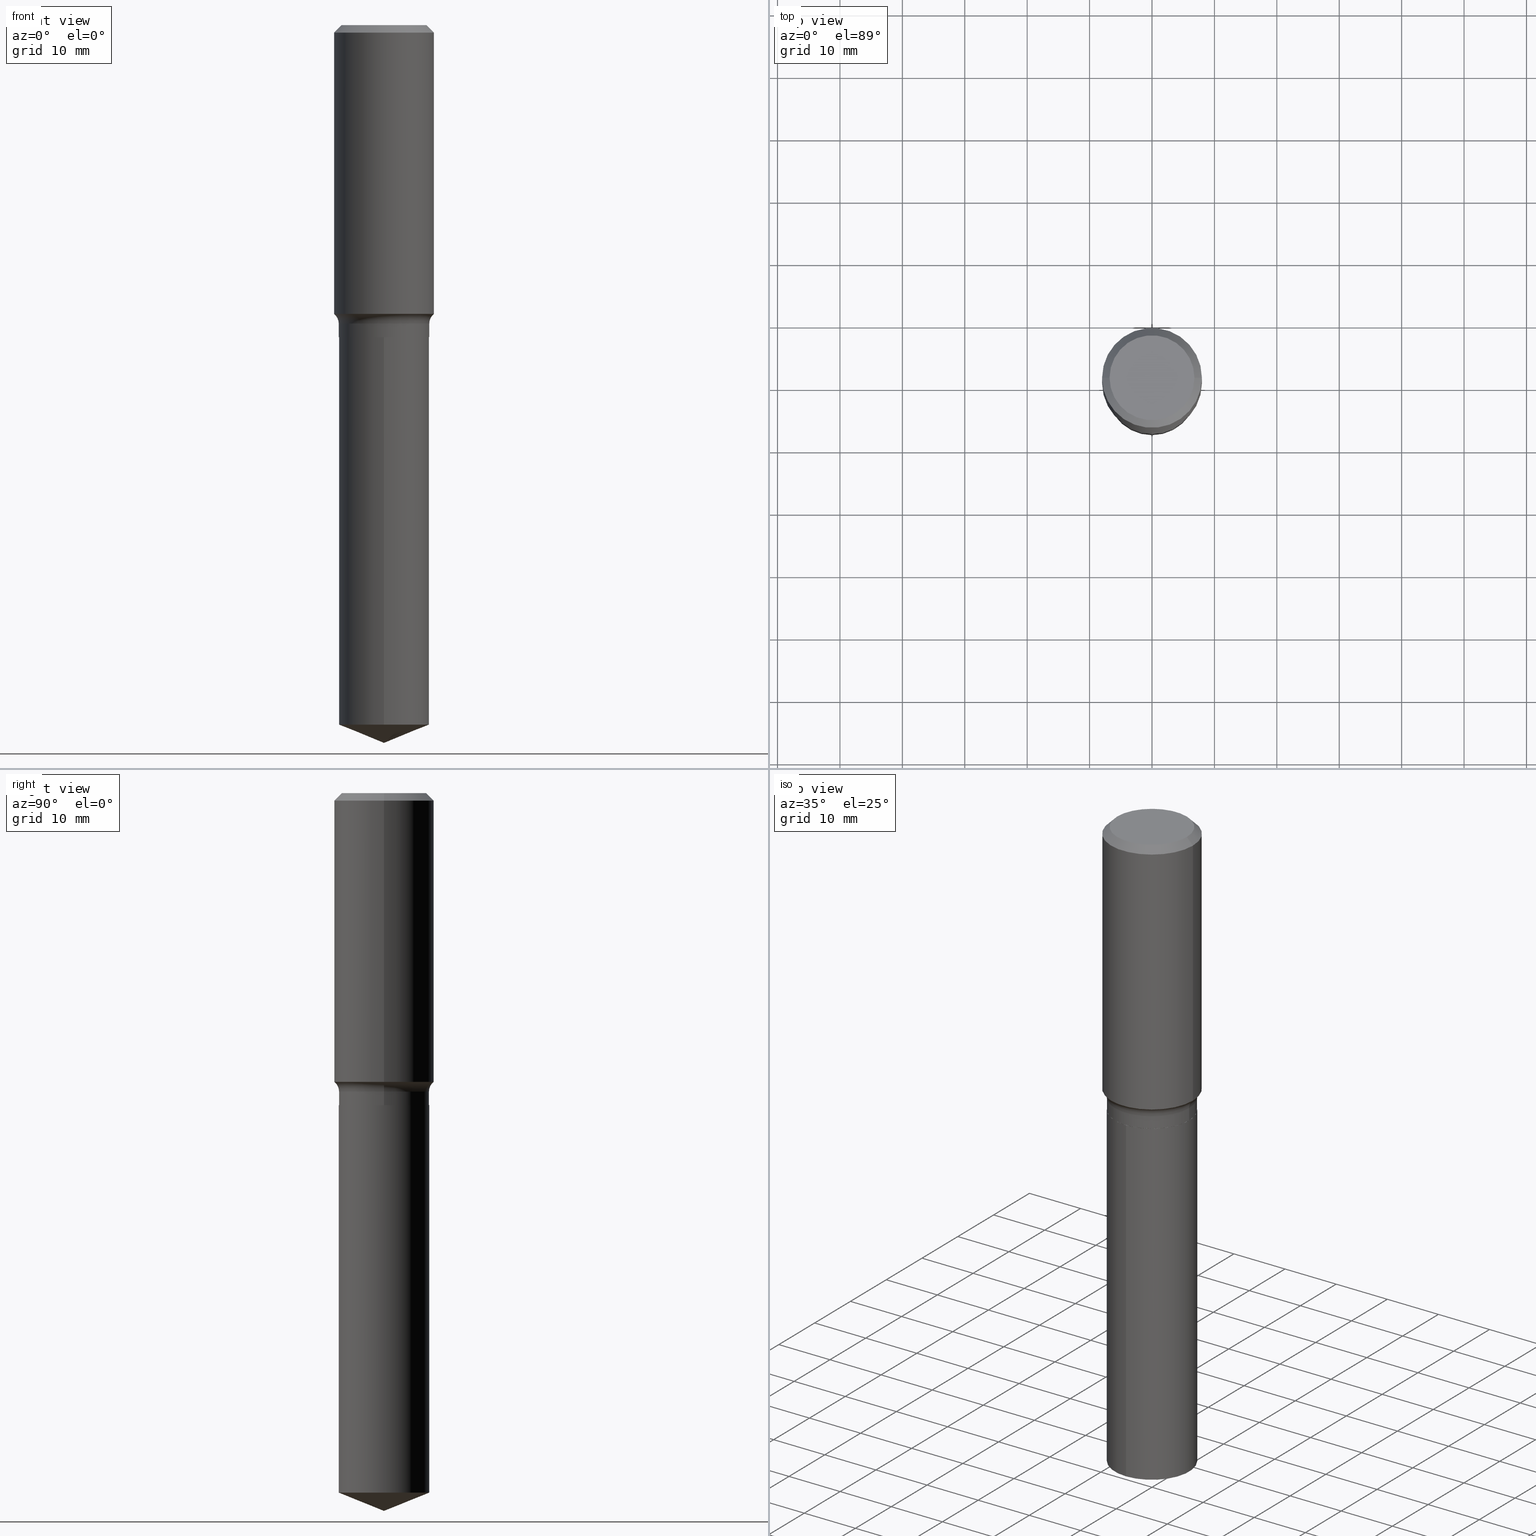
[diagram: canonical four-view strip — front | top / right | iso, engineering-drawing reading convention]
A machine part, canonical four-view strip (front | top / right | iso — engineering-drawing reading convention). The complete STEP part file that produces these views, byte-faithful:
ISO-10303-21;
HEADER;
FILE_DESCRIPTION (( 'STEP AP203' ),
    '1' );
FILE_NAME ('69217.STEP',
    '2024-04-19T17:24:49',
    ( '' ),
    ( '' ),
    'SwSTEP 2.0',
    'SolidWorks 2023',
    '' );
FILE_SCHEMA (( 'CONFIG_CONTROL_DESIGN' ));
ENDSEC;

DATA;
#1 = LINE ( 'NONE', #32, #479 ) ;
#2 = EDGE_CURVE ( 'NONE', #256, #327, #13, .T. ) ;
#3 = CARTESIAN_POINT ( 'NONE',  ( 4.455184291514019437E-29, -6.360822422099911684E-15, -1.821811948795201808 ) ) ;
#4 = APPROVAL ( #245, 'UNSPECIFIED' ) ;
#5 = FACE_OUTER_BOUND ( 'NONE', #366, .T. ) ;
#6 = CARTESIAN_POINT ( 'NONE',  ( 1.155300600762019572E-30, -1.649463071502982046E-16, -0.04724250000000026345 ) ) ;
#7 = PERSON_AND_ORGANIZATION ( #217, #439 ) ;
#8 = EDGE_LOOP ( 'NONE', ( #391, #482, #38, #113 ) ) ;
#9 = PERSON_AND_ORGANIZATION_ROLE ( 'classification_officer' ) ;
#10 = AXIS2_PLACEMENT_3D ( 'NONE', #37, #338, #409 ) ;
#11 = AXIS2_PLACEMENT_3D ( 'NONE', #176, #473, #316 ) ;
#12 = EDGE_CURVE ( 'NONE', #329, #239, #117, .T. ) ;
#13 = LINE ( 'NONE', #172, #130 ) ;
#14 = ORIENTED_EDGE ( 'NONE', *, *, #376, .T. ) ;
#15 = CALENDAR_DATE ( 2024, 19, 4 ) ;
#16 = AXIS2_PLACEMENT_3D ( 'NONE', #158, #259, #226 ) ;
#17 = CARTESIAN_POINT ( 'NONE',  ( 0.3149500000000000632, -2.199284095337290265E-15, 1.535751875536930410E-29 ) ) ;
#18 = VECTOR ( 'NONE', #188, 39.37007874015748854 ) ;
#19 = FACE_OUTER_BOUND ( 'NONE', #8, .T. ) ;
#20 = CARTESIAN_POINT ( 'NONE',  ( 4.813905344975440153E-29, -6.872981015512730130E-15, -1.968499999999999472 ) ) ;
#21 = CONICAL_SURFACE ( 'NONE', #381, 97.44436430772837809, 1.186823891356144856 ) ;
#22 = ADVANCED_FACE ( 'NONE', ( #40 ), #274, .T. ) ;
#23 = AXIS2_PLACEMENT_3D ( 'NONE', #249, #398, #64 ) ;
#24 = CC_DESIGN_SECURITY_CLASSIFICATION ( #205, ( #335 ) ) ;
#25 = ORIENTED_EDGE ( 'NONE', *, *, #100, .T. ) ;
#26 = DIRECTION ( 'NONE',  ( -2.445468806185136597E-29, 3.491481338843145583E-15, 1.000000000000000000 ) ) ;
#27 = MANIFOLD_SOLID_BREP ( 'Body-Move/Copy2[1]', #129 ) ;
#28 = EDGE_LOOP ( 'NONE', ( #418, #44, #368 ) ) ;
#29 = CARTESIAN_POINT ( 'NONE',  ( -1.001697619218022568E-46, 1.430158722866391086E-32, 4.096137381448112218E-18 ) ) ;
#30 = ORIENTED_EDGE ( 'NONE', *, *, #155, .F. ) ;
#31 = EDGE_CURVE ( 'NONE', #136, #207, #263, .T. ) ;
#32 = CARTESIAN_POINT ( 'NONE',  ( -1.993286696345496046E-15, -0.2854500000000068094, -1.968499999999998362 ) ) ;
#33 = AXIS2_PLACEMENT_3D ( 'NONE', #91, #85, #342 ) ;
#34 = AXIS2_PLACEMENT_3D ( 'NONE', #378, #41, #367 ) ;
#35 = ORIENTED_EDGE ( 'NONE', *, *, #210, .T. ) ;
#36 = CARTESIAN_POINT ( 'NONE',  ( 0.2854499999999999815, -1.993286696345544561E-15, 1.391904660650949682E-29 ) ) ;
#37 = CARTESIAN_POINT ( 'NONE',  ( 4.455184291514019437E-29, -6.360822422099911684E-15, -1.821811948795201808 ) ) ;
#38 = ORIENTED_EDGE ( 'NONE', *, *, #71, .F. ) ;
#39 = DIRECTION ( 'NONE',  ( -2.445526132303664263E-29, 3.491399244578613413E-15, 1.000000000000000000 ) ) ;
#40 = FACE_OUTER_BOUND ( 'NONE', #82, .T. ) ;
#41 = DIRECTION ( 'NONE',  ( 2.438088387897960049E-29, -3.491481338843145188E-15, -1.000000000000000000 ) ) ;
#42 = CC_DESIGN_PERSON_AND_ORGANIZATION_ASSIGNMENT ( #238, #357, ( #335 ) ) ;
#43 = CIRCLE ( 'NONE', #23, 0.2854499999999999815 ) ;
#44 = ORIENTED_EDGE ( 'NONE', *, *, #2, .T. ) ;
#45 = CIRCLE ( 'NONE', #177, 0.2677074999999999871 ) ;
#46 = PERSON_AND_ORGANIZATION_ROLE ( 'design_owner' ) ;
#47 = DIRECTION ( 'NONE',  ( 1.000000000000000000, -6.982962677686265922E-15, 0.000000000000000000 ) ) ;
#48 = CALENDAR_DATE ( 2024, 19, 4 ) ;
#49 = PRODUCT ( '69217', '69217', '', ( #126 ) ) ;
#50 = DIRECTION ( 'NONE',  ( -2.445526132303664543E-29, 3.491399244578613413E-15, 1.000000000000000000 ) ) ;
#51 = ADVANCED_FACE ( 'NONE', ( #377 ), #68, .T. ) ;
#52 = PERSON_AND_ORGANIZATION ( #217, #439 ) ;
#53 = APPLICATION_CONTEXT ( 'configuration controlled 3d designs of mechanical parts and assemblies' ) ;
#54 = PLANE ( 'NONE',  #33 ) ;
#55 = CIRCLE ( 'NONE', #197, 0.2854499999999999815 ) ;
#56 = AXIS2_PLACEMENT_3D ( 'NONE', #120, #149, #255 ) ;
#57 = VERTEX_POINT ( 'NONE', #425 ) ;
#58 = APPROVAL_STATUS ( 'not_yet_approved' ) ;
#59 = CARTESIAN_POINT ( 'NONE',  ( 4.812682610572347912E-29, -6.871235274843308626E-15, -1.967999999999999527 ) ) ;
#60 = DIRECTION ( 'NONE',  ( -2.445468806185136597E-29, 3.491481338843145583E-15, 1.000000000000000000 ) ) ;
#61 = CIRCLE ( 'NONE', #270, 0.3149500000000001743 ) ;
#62 = DIRECTION ( 'NONE',  ( 1.000000000000000000, -6.982962677686265922E-15, 0.000000000000000000 ) ) ;
#63 = LOCAL_TIME ( 13, 24, 49.00000000000000000, #272 ) ;
#64 = DIRECTION ( 'NONE',  ( -6.982962677686265133E-15, -1.000000000000000000, 3.828128209723963046E-15 ) ) ;
#65 = ADVANCED_FACE ( 'NONE', ( #195 ), #54, .F. ) ;
#66 = ORIENTED_EDGE ( 'NONE', *, *, #487, .T. ) ;
#67 = CARTESIAN_POINT ( 'NONE',  ( 0.2849499999999999811, -8.862776230519431684E-15, -1.968499999999999472 ) ) ;
#68 = CONICAL_SURFACE ( 'NONE', #243, 0.3149500000000000077, 0.7853981633974456145 ) ;
#69 = ORIENTED_EDGE ( 'NONE', *, *, #84, .T. ) ;
#70 = DIRECTION ( 'NONE',  ( -6.982962677686266711E-15, -1.000000000000000000, 3.491481338843145583E-15 ) ) ;
#71 = EDGE_CURVE ( 'NONE', #88, #57, #55, .T. ) ;
#72 = VERTEX_POINT ( 'NONE', #492 ) ;
#73 = CARTESIAN_POINT ( 'NONE',  ( 0.3149500000000001743, -8.560106517437202343E-15, -1.821811948795201808 ) ) ;
#74 = FACE_OUTER_BOUND ( 'NONE', #383, .T. ) ;
#75 = EDGE_LOOP ( 'NONE', ( #193, #66, #405, #370 ) ) ;
#76 = CARTESIAN_POINT ( 'NONE',  ( -0.2854500000000000370, -4.694428504648327695E-15, -1.882899999999999796 ) ) ;
#77 = AXIS2_PLACEMENT_3D ( 'NONE', #59, #60, #346 ) ;
#78 = APPLICATION_CONTEXT ( 'configuration controlled 3d designs of mechanical parts and assemblies' ) ;
#79 = CIRCLE ( 'NONE', #415, 0.3149500000000000077 ) ;
#80 = EDGE_LOOP ( 'NONE', ( #128, #14, #35, #490 ) ) ;
#81 = DIRECTION ( 'NONE',  ( 7.105427357601001859E-15, 1.000000000000000000, -3.491481338843145583E-15 ) ) ;
#82 = EDGE_LOOP ( 'NONE', ( #231, #410, #364, #148 ) ) ;
#83 = DIRECTION ( 'NONE',  ( -2.445526132303664543E-29, 3.491399244578613413E-15, 1.000000000000000000 ) ) ;
#84 = EDGE_CURVE ( 'NONE', #451, #136, #61, .T. ) ;
#85 = DIRECTION ( 'NONE',  ( 2.445526132303664263E-29, -3.491399244578613413E-15, -1.000000000000000000 ) ) ;
#86 = DATE_AND_TIME ( #15, #98 ) ;
#87 = AXIS2_PLACEMENT_3D ( 'NONE', #124, #121, #420 ) ;
#88 = VERTEX_POINT ( 'NONE', #261 ) ;
#89 = VECTOR ( 'NONE', #375, 39.37007874015748143 ) ;
#90 = PERSON_AND_ORGANIZATION ( #217, #439 ) ;
#91 = CARTESIAN_POINT ( 'NONE',  ( 4.813905344975440153E-29, -6.872981015512730130E-15, -1.968499999999999472 ) ) ;
#92 = LENGTH_MEASURE_WITH_UNIT ( LENGTH_MEASURE( 0.02539999999999999897 ), #114 );
#93 = DIRECTION ( 'NONE',  ( -1.000000000000000000, 6.982962677686266711E-15, 0.000000000000000000 ) ) ;
#94 = COORDINATED_UNIVERSAL_TIME_OFFSET ( 5, 0, .BEHIND. ) ;
#95 = ORIENTED_EDGE ( 'NONE', *, *, #31, .F. ) ;
#96 = CONICAL_SURFACE ( 'NONE', #159, 97.44436430772837809, 1.186823891356144856 ) ;
#97 = SECURITY_CLASSIFICATION_LEVEL ( 'unclassified' ) ;
#98 = LOCAL_TIME ( 13, 24, 49.00000000000000000, #170 ) ;
#99 = DIRECTION ( 'NONE',  ( -2.445468806185136597E-29, 3.491481338843145583E-15, 1.000000000000000000 ) ) ;
#100 = EDGE_CURVE ( 'NONE', #57, #441, #160, .T. ) ;
#101 = CC_DESIGN_PERSON_AND_ORGANIZATION_ASSIGNMENT ( #52, #9, ( #205 ) ) ;
#102 = DIRECTION ( 'NONE',  ( 1.000000000000000000, -6.982962677686266711E-15, 4.883557194083112901E-29 ) ) ;
#103 = CIRCLE ( 'NONE', #10, 0.3149500000000001743 ) ;
#104 = CARTESIAN_POINT ( 'NONE',  ( -0.2849499999999999811, -4.845640262790213978E-15, -1.968499999999999472 ) ) ;
#105 = VECTOR ( 'NONE', #340, 39.37007874015748854 ) ;
#106 = ADVANCED_FACE ( 'NONE', ( #460 ), #21, .T. ) ;
#107 = CARTESIAN_POINT ( 'NONE',  ( -1.993286696345436093E-15, -0.2854500000000153026, -4.412270713835352964 ) ) ;
#108 = VERTEX_POINT ( 'NONE', #306 ) ;
#109 = DIRECTION ( 'NONE',  ( -6.982962677686265922E-15, -1.000000000000000000, 3.498761904101829135E-15 ) ) ;
#110 = AXIS2_PLACEMENT_3D ( 'NONE', #433, #99, #246 ) ;
#111 = ORIENTED_EDGE ( 'NONE', *, *, #100, .F. ) ;
#112 = CARTESIAN_POINT ( 'NONE',  ( 1.107213842368942648E-28, -1.580798242487359343E-14, -4.527599999999999625 ) ) ;
#113 = ORIENTED_EDGE ( 'NONE', *, *, #382, .F. ) ;
#114 =( LENGTH_UNIT ( ) NAMED_UNIT ( * ) SI_UNIT ( $, .METRE. ) );
#115 = EDGE_LOOP ( 'NONE', ( #467, #339, #311, #483 ) ) ;
#116 = CARTESIAN_POINT ( 'NONE',  ( 1.155300600762019572E-30, -1.649463071502982046E-16, -0.04724250000000026345 ) ) ;
#117 = CIRCLE ( 'NONE', #278, 0.2849499999999999811 ) ;
#118 = EDGE_LOOP ( 'NONE', ( #69, #242, #145, #254 ) ) ;
#119 = EDGE_CURVE ( 'NONE', #356, #207, #423, .T. ) ;
#120 = CARTESIAN_POINT ( 'NONE',  ( 0.000000000000000000, 0.000000000000000000, 0.000000000000000000 ) ) ;
#121 = DIRECTION ( 'NONE',  ( -2.445526132303664543E-29, 3.491399244578613413E-15, 1.000000000000000000 ) ) ;
#122 = ORIENTED_EDGE ( 'NONE', *, *, #84, .F. ) ;
#123 = LINE ( 'NONE', #154, #89 ) ;
#124 = CARTESIAN_POINT ( 'NONE',  ( 4.813905344975440153E-29, -6.872981015512730130E-15, -1.968499999999999472 ) ) ;
#125 = DIRECTION ( 'NONE',  ( 2.445468806185136597E-29, -3.491481338843145583E-15, -1.000000000000000000 ) ) ;
#126 = MECHANICAL_CONTEXT ( 'NONE', #53, 'mechanical' ) ;
#127 = PRODUCT_RELATED_PRODUCT_CATEGORY ( 'detail', '', ( #49 ) ) ;
#128 = ORIENTED_EDGE ( 'NONE', *, *, #184, .F. ) ;
#129 = CLOSED_SHELL ( 'NONE', ( #397, #292, #106, #22, #65 ) ) ;
#130 = VECTOR ( 'NONE', #388, 39.37007874015748143 ) ;
#131 = ORIENTED_EDGE ( 'NONE', *, *, #163, .T. ) ;
#132 = LOCAL_TIME ( 13, 24, 49.00000000000000000, #94 ) ;
#133 = PERSON_AND_ORGANIZATION_ROLE ( 'creator' ) ;
#134 = APPROVAL_ROLE ( '' ) ;
#135 = CARTESIAN_POINT ( 'NONE',  ( -0.2849499999999999811, -4.848289489964324390E-15, -1.968499999999999472 ) ) ;
#136 = VERTEX_POINT ( 'NONE', #201 ) ;
#137 = PRODUCT_DEFINITION_SHAPE ( 'NONE', 'NONE',  #142 ) ;
#138 = AXIS2_PLACEMENT_3D ( 'NONE', #476, #284, #62 ) ;
#139 = CC_DESIGN_PERSON_AND_ORGANIZATION_ASSIGNMENT ( #348, #133, ( #335 ) ) ;
#140 = DIRECTION ( 'NONE',  ( -2.445526132303664543E-29, 3.491399244578613413E-15, 1.000000000000000000 ) ) ;
#141 = CARTESIAN_POINT ( 'NONE',  ( 2.028244239227312740E-15, 0.2854499999999844939, -4.412270713835355629 ) ) ;
#142 = PRODUCT_DEFINITION ( 'UNKNOWN', '', #335, #268 ) ;
#143 = DIRECTION ( 'NONE',  ( -2.445468806185136597E-29, 3.491481338843145583E-15, 1.000000000000000000 ) ) ;
#144 = AXIS2_PLACEMENT_3D ( 'NONE', #296, #70, #298 ) ;
#145 = ORIENTED_EDGE ( 'NONE', *, *, #450, .F. ) ;
#146 = CC_DESIGN_DATE_AND_TIME_ASSIGNMENT ( #86, #471, ( #205 ) ) ;
#147 = FACE_OUTER_BOUND ( 'NONE', #190, .T. ) ;
#148 = ORIENTED_EDGE ( 'NONE', *, *, #163, .F. ) ;
#149 = DIRECTION ( 'NONE',  ( -2.445468806185136597E-29, 3.491481338843145583E-15, 1.000000000000000000 ) ) ;
#150 = AXIS2_PLACEMENT_3D ( 'NONE', #477, #143, #286 ) ;
#151 = TOROIDAL_SURFACE ( 'NONE', #236, 0.3634499999999999398, 0.07799999999999993050 ) ;
#152 = ORIENTED_EDGE ( 'NONE', *, *, #436, .T. ) ;
#153 = ORIENTED_EDGE ( 'NONE', *, *, #218, .T. ) ;
#154 = CARTESIAN_POINT ( 'NONE',  ( 0.2849499999999999811, -8.862776230519431684E-15, -1.968499999999999472 ) ) ;
#155 = EDGE_CURVE ( 'NONE', #207, #345, #334, .T. ) ;
#156 = ORIENTED_EDGE ( 'NONE', *, *, #175, .T. ) ;
#157 = DIRECTION ( 'NONE',  ( 1.000000000000000000, -6.982962677686266711E-15, 4.883557194083112901E-29 ) ) ;
#158 = CARTESIAN_POINT ( 'NONE',  ( 4.813905344975440153E-29, -6.872981015512730130E-15, -1.968499999999999472 ) ) ;
#159 = AXIS2_PLACEMENT_3D ( 'NONE', #319, #140, #109 ) ;
#160 = LINE ( 'NONE', #233, #344 ) ;
#161 = DIRECTION ( 'NONE',  ( 2.445468806185136597E-29, -3.491481338843145583E-15, -1.000000000000000000 ) ) ;
#162 = CARTESIAN_POINT ( 'NONE',  ( 1.155300600762019572E-30, -1.649463071502982046E-16, -0.04724250000000026345 ) ) ;
#163 = EDGE_CURVE ( 'NONE', #108, #228, #395, .T. ) ;
#164 = DATE_AND_TIME ( #48, #132 ) ;
#165 = CYLINDRICAL_SURFACE ( 'NONE', #414, 0.2854499999999999815 ) ;
#166 = DIRECTION ( 'NONE',  ( 1.000000000000000000, -6.982962677686268288E-15, 0.000000000000000000 ) ) ;
#167 = VECTOR ( 'NONE', #277, 39.37007874015748143 ) ;
#168 = EDGE_LOOP ( 'NONE', ( #111, #153, #295, #183 ) ) ;
#169 = CIRCLE ( 'NONE', #248, 0.2849499999999999811 ) ;
#170 = COORDINATED_UNIVERSAL_TIME_OFFSET ( 5, 0, .BEHIND. ) ;
#171 = LINE ( 'NONE', #135, #167 ) ;
#172 = CARTESIAN_POINT ( 'NONE',  ( 1.107236609567864703E-28, -1.580765921975412736E-14, -4.527599999999999625 ) ) ;
#173 = CALENDAR_DATE ( 2024, 19, 4 ) ;
#174 = ORIENTED_EDGE ( 'NONE', *, *, #308, .F. ) ;
#175 = EDGE_CURVE ( 'NONE', #228, #108, #309, .T. ) ;
#176 = CARTESIAN_POINT ( 'NONE',  ( 0.000000000000000000, 0.000000000000000000, 0.000000000000000000 ) ) ;
#177 = AXIS2_PLACEMENT_3D ( 'NONE', #29, #186, #331 ) ;
#178 = LINE ( 'NONE', #247, #253 ) ;
#179 = SHAPE_DEFINITION_REPRESENTATION ( #137, #354 ) ;
#180 = FACE_OUTER_BOUND ( 'NONE', #118, .T. ) ;
#181 = CONICAL_SURFACE ( 'NONE', #150, 0.2849499999999999811, 0.7853981633975165577 ) ;
#182 = CARTESIAN_POINT ( 'NONE',  ( -1.001697619218022568E-46, 1.430158722866391086E-32, 4.096137381448112218E-18 ) ) ;
#183 = ORIENTED_EDGE ( 'NONE', *, *, #210, .F. ) ;
#184 = EDGE_CURVE ( 'NONE', #136, #451, #103, .T. ) ;
#185 = EDGE_LOOP ( 'NONE', ( #457, #454, #412, #488 ) ) ;
#186 = DIRECTION ( 'NONE',  ( -2.445468806185136597E-29, 3.491481338843145583E-15, 1.000000000000000000 ) ) ;
#187 = EDGE_LOOP ( 'NONE', ( #446, #336 ) ) ;
#188 = DIRECTION ( 'NONE',  ( 0.7071067811865455743, -7.319954787623248157E-15, -0.7071067811865493491 ) ) ;
#189 = CONICAL_SURFACE ( 'NONE', #352, 0.3149500000000000077, 0.7853981633974456145 ) ;
#190 = EDGE_LOOP ( 'NONE', ( #463, #486, #219, #221 ) ) ;
#191 = FACE_OUTER_BOUND ( 'NONE', #80, .T. ) ;
#192 = ADVANCED_FACE ( 'NONE', ( #74 ), #417, .F. ) ;
#193 = ORIENTED_EDGE ( 'NONE', *, *, #481, .F. ) ;
#194 = FACE_OUTER_BOUND ( 'NONE', #185, .T. ) ;
#195 = FACE_OUTER_BOUND ( 'NONE', #257, .T. ) ;
#196 = CYLINDRICAL_SURFACE ( 'NONE', #372, 0.2854499999999999815 ) ;
#197 = AXIS2_PLACEMENT_3D ( 'NONE', #304, #237, #353 ) ;
#198 = DIRECTION ( 'NONE',  ( -2.445468806185136877E-29, 3.491481338843145188E-15, 1.000000000000000000 ) ) ;
#199 =( NAMED_UNIT ( * ) PLANE_ANGLE_UNIT ( ) SI_UNIT ( $, .RADIAN. ) );
#200 = DIRECTION ( 'NONE',  ( -6.982962677686265922E-15, -1.000000000000000000, 3.498761904101829135E-15 ) ) ;
#201 = CARTESIAN_POINT ( 'NONE',  ( -0.3149500000000001743, -4.122968075823474910E-15, -1.821811948795201808 ) ) ;
#202 = DATE_AND_TIME ( #173, #63 ) ;
#203 = AXIS2_PLACEMENT_3D ( 'NONE', #20, #216, #361 ) ;
#204 = CARTESIAN_POINT ( 'NONE',  ( -0.3149500000000000632, 2.237854346276435985E-15, -1.549218606675782956E-29 ) ) ;
#205 = SECURITY_CLASSIFICATION ( '', '', #97 ) ;
#206 = EDGE_CURVE ( 'NONE', #329, #57, #171, .T. ) ;
#207 = VERTEX_POINT ( 'NONE', #307 ) ;
#208 = APPROVAL_STATUS ( 'not_yet_approved' ) ;
#209 = LINE ( 'NONE', #17, #299 ) ;
#210 = EDGE_CURVE ( 'NONE', #441, #287, #282, .T. ) ;
#211 = VECTOR ( 'NONE', #266, 39.37007874015748854 ) ;
#212 = CARTESIAN_POINT ( 'NONE',  ( 0.3149500000000000077, -2.364230402487588149E-15, -0.04724250000000026345 ) ) ;
#213 = CYLINDRICAL_SURFACE ( 'NONE', #478, 0.2854499999999999815 ) ;
#214 = ORIENTED_EDGE ( 'NONE', *, *, #469, .F. ) ;
#215 = LOCAL_TIME ( 13, 24, 49.00000000000000000, #384 ) ;
#216 = DIRECTION ( 'NONE',  ( -2.445468806185136597E-29, 3.491481338843145583E-15, 1.000000000000000000 ) ) ;
#217 = PERSON ( 'UNSPECIFIED', 'UNSPECIFIED', 'UNSPECIFIED', ('UNSPECIFIED'), ('UNSPECIFIED'), ('UNSPECIFIED') ) ;
#218 = EDGE_CURVE ( 'NONE', #57, #88, #290, .T. ) ;
#219 = ORIENTED_EDGE ( 'NONE', *, *, #382, .T. ) ;
#220 = DIRECTION ( 'NONE',  ( -2.445468806185136597E-29, 3.491481338843145583E-15, 1.000000000000000000 ) ) ;
#221 = ORIENTED_EDGE ( 'NONE', *, *, #218, .F. ) ;
#222 = DIRECTION ( 'NONE',  ( -6.982962677686265133E-15, -1.000000000000000000, 3.828128209723963046E-15 ) ) ;
#223 = ORIENTED_EDGE ( 'NONE', *, *, #404, .T. ) ;
#224 = ADVANCED_FACE ( 'NONE', ( #5 ), #165, .T. ) ;
#225 = LINE ( 'NONE', #36, #325 ) ;
#226 = DIRECTION ( 'NONE',  ( -6.982962677686265922E-15, -1.000000000000000000, 3.828128209723963046E-15 ) ) ;
#227 = CC_DESIGN_APPROVAL ( #393, ( #142 ) ) ;
#228 = VERTEX_POINT ( 'NONE', #399 ) ;
#229 = ADVANCED_FACE ( 'NONE', ( #322 ), #213, .T. ) ;
#230 = DIRECTION ( 'NONE',  ( -1.000000000000000000, 7.105427357601001859E-15, 0.000000000000000000 ) ) ;
#231 = ORIENTED_EDGE ( 'NONE', *, *, #323, .F. ) ;
#232 = PLANE ( 'NONE',  #34 ) ;
#233 = CARTESIAN_POINT ( 'NONE',  ( -0.2854499999999999815, 2.028244239227205849E-15, -1.404110021513262784E-29 ) ) ;
#234 = COORDINATED_UNIVERSAL_TIME_OFFSET ( 5, 0, .BEHIND. ) ;
#235 = CLOSED_SHELL ( 'NONE', ( #265, #359, #285, #430, #224, #229, #318, #442, #51, #475, #192, #250 ) ) ;
#236 = AXIS2_PLACEMENT_3D ( 'NONE', #489, #491, #157 ) ;
#237 = DIRECTION ( 'NONE',  ( -2.445468806185136597E-29, 3.491481338843145583E-15, 1.000000000000000000 ) ) ;
#238 = PERSON_AND_ORGANIZATION ( #217, #439 ) ;
#239 = VERTEX_POINT ( 'NONE', #67 ) ;
#240 = CC_DESIGN_DATE_AND_TIME_ASSIGNMENT ( #380, #422, ( #142 ) ) ;
#241 = DATE_AND_TIME ( #275, #455 ) ;
#242 = ORIENTED_EDGE ( 'NONE', *, *, #31, .T. ) ;
#243 = AXIS2_PLACEMENT_3D ( 'NONE', #162, #125, #93 ) ;
#244 = CC_DESIGN_APPROVAL ( #4, ( #205 ) ) ;
#245 = APPROVAL_STATUS ( 'not_yet_approved' ) ;
#246 = DIRECTION ( 'NONE',  ( 1.000000000000000000, -6.982962677686265922E-15, 0.000000000000000000 ) ) ;
#247 = CARTESIAN_POINT ( 'NONE',  ( 2.028244239227253575E-15, 0.2854499999999930981, -1.968500000000000583 ) ) ;
#248 = AXIS2_PLACEMENT_3D ( 'NONE', #449, #291, #294 ) ;
#249 = CARTESIAN_POINT ( 'NONE',  ( 1.079021048701818205E-28, -1.540516023972082646E-14, -4.412270713835354741 ) ) ;
#250 = ADVANCED_FACE ( 'NONE', ( #147 ), #317, .T. ) ;
#251 = DIRECTION ( 'NONE',  ( 1.000000000000000000, -6.982962677686265922E-15, 4.876176775795935232E-29 ) ) ;
#252 = EDGE_LOOP ( 'NONE', ( #400, #122, #152, #407 ) ) ;
#253 = VECTOR ( 'NONE', #437, 39.37007874015748143 ) ;
#254 = ORIENTED_EDGE ( 'NONE', *, *, #302, .F. ) ;
#255 = DIRECTION ( 'NONE',  ( 1.000000000000000000, -6.982962677686266711E-15, 4.876176775795936353E-29 ) ) ;
#256 = VERTEX_POINT ( 'NONE', #328 ) ;
#257 = EDGE_LOOP ( 'NONE', ( #156, #131 ) ) ;
#258 = FACE_OUTER_BOUND ( 'NONE', #75, .T. ) ;
#259 = DIRECTION ( 'NONE',  ( -2.445526132303664543E-29, 3.491399244578613413E-15, 1.000000000000000000 ) ) ;
#260 = APPROVAL_PERSON_ORGANIZATION ( #468, #4, #134 ) ;
#261 = CARTESIAN_POINT ( 'NONE',  ( 0.2854499999999999815, -8.864521971188853976E-15, -1.967999999999999527 ) ) ;
#262 = FACE_OUTER_BOUND ( 'NONE', #187, .T. ) ;
#263 = LINE ( 'NONE', #204, #485 ) ;
#264 = LINE ( 'NONE', #112, #105 ) ;
#265 = ADVANCED_FACE ( 'NONE', ( #19 ), #181, .T. ) ;
#266 = DIRECTION ( 'NONE',  ( -0.7071067811865455743, 2.468850131082236945E-15, -0.7071067811865493491 ) ) ;
#267 = PERSON_AND_ORGANIZATION ( #217, #439 ) ;
#268 = DESIGN_CONTEXT ( 'detailed design', #78, 'design' ) ;
#269 = DIRECTION ( 'NONE',  ( -2.445468806185136597E-29, 3.491481338843145583E-15, 1.000000000000000000 ) ) ;
#270 = AXIS2_PLACEMENT_3D ( 'NONE', #3, #470, #47 ) ;
#271 = DIRECTION ( 'NONE',  ( -6.982962677686265133E-15, -1.000000000000000000, 3.828128209723963046E-15 ) ) ;
#272 = COORDINATED_UNIVERSAL_TIME_OFFSET ( 5, 0, .BEHIND. ) ;
#273 = EDGE_CURVE ( 'NONE', #356, #72, #444, .T. ) ;
#274 = CYLINDRICAL_SURFACE ( 'NONE', #438, 0.2854499999999999815 ) ;
#275 = CALENDAR_DATE ( 2024, 19, 4 ) ;
#276 = APPROVAL_ROLE ( '' ) ;
#277 = DIRECTION ( 'NONE',  ( -0.7071067811865957564, 7.493145998870527710E-15, 0.7071067811864992780 ) ) ;
#278 = AXIS2_PLACEMENT_3D ( 'NONE', #301, #379, #166 ) ;
#279 = CARTESIAN_POINT ( 'NONE',  ( 4.604573215165993234E-29, -6.574110212907758463E-15, -1.882899999999999796 ) ) ;
#280 = DIRECTION ( 'NONE',  ( 1.000000000000000000, -6.982962677686266711E-15, 0.000000000000000000 ) ) ;
#281 = CYLINDRICAL_SURFACE ( 'NONE', #453, 0.3149500000000000632 ) ;
#282 = CIRCLE ( 'NONE', #110, 0.2854499999999999815 ) ;
#283 = APPROVAL_PERSON_ORGANIZATION ( #350, #330, #276 ) ;
#284 = DIRECTION ( 'NONE',  ( -2.445468806185136597E-29, 3.491481338843145583E-15, 1.000000000000000000 ) ) ;
#285 = ADVANCED_FACE ( 'NONE', ( #180 ), #281, .T. ) ;
#286 = DIRECTION ( 'NONE',  ( 1.000000000000000000, -6.982962677686268288E-15, 0.000000000000000000 ) ) ;
#287 = VERTEX_POINT ( 'NONE', #365 ) ;
#288 = CARTESIAN_POINT ( 'NONE',  ( 0.000000000000000000, 0.000000000000000000, 0.000000000000000000 ) ) ;
#289 = VERTEX_POINT ( 'NONE', #107 ) ;
#290 = CIRCLE ( 'NONE', #77, 0.2854499999999999815 ) ;
#291 = DIRECTION ( 'NONE',  ( -2.445468806185136597E-29, 3.491481338843145583E-15, 1.000000000000000000 ) ) ;
#292 = ADVANCED_FACE ( 'NONE', ( #443 ), #96, .T. ) ;
#293 = ORIENTED_EDGE ( 'NONE', *, *, #392, .F. ) ;
#294 = DIRECTION ( 'NONE',  ( 1.000000000000000000, -6.982962677686268288E-15, 0.000000000000000000 ) ) ;
#295 = ORIENTED_EDGE ( 'NONE', *, *, #392, .T. ) ;
#296 = CARTESIAN_POINT ( 'NONE',  ( 0.3634499999999999398, -9.112067998112831859E-15, -1.882899999999999796 ) ) ;
#297 = ORIENTED_EDGE ( 'NONE', *, *, #184, .T. ) ;
#298 = DIRECTION ( 'NONE',  ( 1.000000000000000000, -6.982962677686261977E-15, 0.000000000000000000 ) ) ;
#299 = VECTOR ( 'NONE', #320, 39.37007874015748143 ) ;
#300 =( GEOMETRIC_REPRESENTATION_CONTEXT ( 3 ) GLOBAL_UNCERTAINTY_ASSIGNED_CONTEXT ( ( #321 ) ) GLOBAL_UNIT_ASSIGNED_CONTEXT ( ( #305, #199, #428 ) ) REPRESENTATION_CONTEXT ( 'NONE', 'WORKASPACE' ) );
#301 = CARTESIAN_POINT ( 'NONE',  ( 4.813905344975440153E-29, -6.872981015512730130E-15, -1.968499999999999472 ) ) ;
#302 = EDGE_CURVE ( 'NONE', #451, #345, #209, .T. ) ;
#303 = DIRECTION ( 'NONE',  ( -2.445526132303664543E-29, 3.491399244578613413E-15, 1.000000000000000000 ) ) ;
#304 = CARTESIAN_POINT ( 'NONE',  ( 4.812682610572347912E-29, -6.871235274843308626E-15, -1.967999999999999527 ) ) ;
#305 =( CONVERSION_BASED_UNIT ( 'INCH', #92 ) LENGTH_UNIT ( ) NAMED_UNIT ( #333 ) );
#306 = CARTESIAN_POINT ( 'NONE',  ( 2.028244239227313923E-15, 0.2854499999999931537, -1.968500000000000583 ) ) ;
#307 = CARTESIAN_POINT ( 'NONE',  ( -0.3149500000000000077, -1.025030018348668799E-15, -0.04724250000000026345 ) ) ;
#308 = EDGE_CURVE ( 'NONE', #287, #441, #432, .T. ) ;
#309 = CIRCLE ( 'NONE', #87, 0.2854499999999999815 ) ;
#310 = APPROVAL_PERSON_ORGANIZATION ( #90, #393, #431 ) ;
#311 = ORIENTED_EDGE ( 'NONE', *, *, #119, .T. ) ;
#312 = APPROVAL_DATE_TIME ( #202, #393 ) ;
#313 = CARTESIAN_POINT ( 'NONE',  ( 4.813905344975440153E-29, -6.872981015512730130E-15, -1.968499999999999472 ) ) ;
#314 = PERSON_AND_ORGANIZATION_ROLE ( 'creator' ) ;
#315 = ORIENTED_EDGE ( 'NONE', *, *, #302, .T. ) ;
#316 = DIRECTION ( 'NONE',  ( 1.000000000000000000, 0.000000000000000000, 0.000000000000000000 ) ) ;
#317 = CONICAL_SURFACE ( 'NONE', #203, 0.2849499999999999811, 0.7853981633975165577 ) ;
#318 = ADVANCED_FACE ( 'NONE', ( #406 ), #402, .F. ) ;
#319 = CARTESIAN_POINT ( 'NONE',  ( -8.520830511975430811E-28, 1.216488423500724991E-13, 34.84247874015748181 ) ) ;
#320 = DIRECTION ( 'NONE',  ( -2.445468806185136877E-29, 3.491481338843145188E-15, 1.000000000000000000 ) ) ;
#321 = UNCERTAINTY_MEASURE_WITH_UNIT (LENGTH_MEASURE( 1.000000000000000082E-05 ), #305, 'distance_accuracy_value', 'NONE');
#322 = FACE_OUTER_BOUND ( 'NONE', #168, .T. ) ;
#323 = EDGE_CURVE ( 'NONE', #327, #108, #178, .T. ) ;
#324 = AXIS2_PLACEMENT_3D ( 'NONE', #182, #440, #326 ) ;
#325 = VECTOR ( 'NONE', #447, 39.37007874015748143 ) ;
#326 = DIRECTION ( 'NONE',  ( 1.000000000000000000, -6.982962677686267499E-15, 4.876236838442819371E-29 ) ) ;
#327 = VERTEX_POINT ( 'NONE', #141 ) ;
#328 = CARTESIAN_POINT ( 'NONE',  ( 1.107236411661807048E-28, -1.580765921975412736E-14, -4.527599999999999625 ) ) ;
#329 = VERTEX_POINT ( 'NONE', #104 ) ;
#330 = APPROVAL ( #208, 'UNSPECIFIED' ) ;
#331 = DIRECTION ( 'NONE',  ( 1.000000000000000000, -6.982962677686267499E-15, 4.876236838442819371E-29 ) ) ;
#332 = ORIENTED_EDGE ( 'NONE', *, *, #2, .F. ) ;
#333 = DIMENSIONAL_EXPONENTS ( 1.000000000000000000, 0.000000000000000000, 0.000000000000000000, 0.000000000000000000, 0.000000000000000000, 0.000000000000000000, 0.000000000000000000 ) ;
#334 = CIRCLE ( 'NONE', #465, 0.3149500000000000077 ) ;
#335 = PRODUCT_DEFINITION_FORMATION_WITH_SPECIFIED_SOURCE ( 'ANY', '', #49, .NOT_KNOWN. ) ;
#336 = ORIENTED_EDGE ( 'NONE', *, *, #481, .T. ) ;
#337 = CARTESIAN_POINT ( 'NONE',  ( -0.3634499999999999398, -3.991642639787674766E-15, -1.882899999999999796 ) ) ;
#338 = DIRECTION ( 'NONE',  ( -2.445468806185136597E-29, 3.491481338843145583E-15, 1.000000000000000000 ) ) ;
#339 = ORIENTED_EDGE ( 'NONE', *, *, #273, .F. ) ;
#340 = DIRECTION ( 'NONE',  ( -6.474490251793178629E-15, -0.9271838545667864251, 0.3746065934159145683 ) ) ;
#341 = EDGE_CURVE ( 'NONE', #289, #327, #43, .T. ) ;
#342 = DIRECTION ( 'NONE',  ( 6.982962677686265922E-15, 1.000000000000000000, -3.491399244578613413E-15 ) ) ;
#343 = CARTESIAN_POINT ( 'NONE',  ( 4.813905344975440153E-29, -6.872981015512730130E-15, -1.968499999999999472 ) ) ;
#344 = VECTOR ( 'NONE', #421, 39.37007874015748143 ) ;
#345 = VERTEX_POINT ( 'NONE', #212 ) ;
#346 = DIRECTION ( 'NONE',  ( 1.000000000000000000, -6.982962677686269077E-15, 0.000000000000000000 ) ) ;
#347 = CARTESIAN_POINT ( 'NONE',  ( -0.3149500000000000077, 2.034337788186991592E-15, -0.04724250000000026345 ) ) ;
#348 = PERSON_AND_ORGANIZATION ( #217, #439 ) ;
#349 = DIRECTION ( 'NONE',  ( -2.445468806185136597E-29, 3.491481338843145583E-15, 1.000000000000000000 ) ) ;
#350 = PERSON_AND_ORGANIZATION ( #217, #439 ) ;
#351 = EDGE_CURVE ( 'NONE', #289, #228, #1, .T. ) ;
#352 = AXIS2_PLACEMENT_3D ( 'NONE', #373, #161, #416 ) ;
#353 = DIRECTION ( 'NONE',  ( 1.000000000000000000, -6.982962677686269077E-15, 0.000000000000000000 ) ) ;
#354 = ADVANCED_BREP_SHAPE_REPRESENTATION ( '69217', ( #27, #358, #11 ), #300 ) ;
#355 = CARTESIAN_POINT ( 'NONE',  ( 4.813905344975440153E-29, -6.872981015512730130E-15, -1.968499999999999472 ) ) ;
#356 = VERTEX_POINT ( 'NONE', #459 ) ;
#357 = PERSON_AND_ORGANIZATION_ROLE ( 'design_supplier' ) ;
#358 = MANIFOLD_SOLID_BREP ( 'Body-Move/Copy2[2]', #235 ) ;
#359 = ADVANCED_FACE ( 'NONE', ( #258 ), #189, .T. ) ;
#360 = CIRCLE ( 'NONE', #445, 0.07799999999999995826 ) ;
#361 = DIRECTION ( 'NONE',  ( 1.000000000000000000, -6.982962677686268288E-15, 0.000000000000000000 ) ) ;
#362 = EDGE_CURVE ( 'NONE', #327, #289, #403, .T. ) ;
#363 = DIRECTION ( 'NONE',  ( -2.445468806185136597E-29, 3.491481338843145583E-15, 1.000000000000000000 ) ) ;
#364 = ORIENTED_EDGE ( 'NONE', *, *, #351, .T. ) ;
#365 = CARTESIAN_POINT ( 'NONE',  ( 0.2854499999999999815, -8.567396909253302236E-15, -1.882899999999999796 ) ) ;
#366 = EDGE_LOOP ( 'NONE', ( #448, #25, #174, #293 ) ) ;
#367 = DIRECTION ( 'NONE',  ( -1.000000000000000000, 6.982962677686265922E-15, -4.876176775795935793E-29 ) ) ;
#368 = ORIENTED_EDGE ( 'NONE', *, *, #341, .F. ) ;
#369 = CARTESIAN_POINT ( 'NONE',  ( 0.3149500000000000077, -2.325660151548442036E-15, -0.04724250000000026345 ) ) ;
#370 = ORIENTED_EDGE ( 'NONE', *, *, #119, .F. ) ;
#371 = AXIS2_PLACEMENT_3D ( 'NONE', #355, #394, #390 ) ;
#372 = AXIS2_PLACEMENT_3D ( 'NONE', #343, #83, #452 ) ;
#373 = CARTESIAN_POINT ( 'NONE',  ( 1.155300600762019572E-30, -1.649463071502982046E-16, -0.04724250000000026345 ) ) ;
#374 = EDGE_LOOP ( 'NONE', ( #332, #223, #429 ) ) ;
#375 = DIRECTION ( 'NONE',  ( 0.7071067811865957564, -2.468850131082761932E-15, 0.7071067811864992780 ) ) ;
#376 = EDGE_CURVE ( 'NONE', #136, #441, #360, .T. ) ;
#377 = FACE_OUTER_BOUND ( 'NONE', #115, .T. ) ;
#378 = CARTESIAN_POINT ( 'NONE',  ( -5.008488096090112840E-47, 7.150793614331955432E-33, 2.048068690724056109E-18 ) ) ;
#379 = DIRECTION ( 'NONE',  ( -2.445468806185136597E-29, 3.491481338843145583E-15, 1.000000000000000000 ) ) ;
#380 = DATE_AND_TIME ( #426, #215 ) ;
#381 = AXIS2_PLACEMENT_3D ( 'NONE', #386, #464, #200 ) ;
#382 = EDGE_CURVE ( 'NONE', #239, #88, #123, .T. ) ;
#383 = EDGE_LOOP ( 'NONE', ( #214, #427 ) ) ;
#384 = COORDINATED_UNIVERSAL_TIME_OFFSET ( 5, 0, .BEHIND. ) ;
#385 = DIRECTION ( 'NONE',  ( 1.000000000000000000, -6.982962677686265922E-15, 4.876176775795935232E-29 ) ) ;
#386 = CARTESIAN_POINT ( 'NONE',  ( -8.520830511975430811E-28, 1.216488423500724991E-13, 34.84247874015748181 ) ) ;
#387 = APPLICATION_PROTOCOL_DEFINITION ( 'international standard', 'config_control_design', 1994, #53 ) ;
#388 = DIRECTION ( 'NONE',  ( 6.588037525764791291E-15, 0.9271838545667889786, 0.3746065934159081290 ) ) ;
#389 = APPROVAL_DATE_TIME ( #241, #4 ) ;
#390 = DIRECTION ( 'NONE',  ( 1.000000000000000000, -6.982962677686265922E-15, 4.876176775795935793E-29 ) ) ;
#391 = ORIENTED_EDGE ( 'NONE', *, *, #469, .T. ) ;
#392 = EDGE_CURVE ( 'NONE', #88, #287, #225, .T. ) ;
#393 = APPROVAL ( #58, 'UNSPECIFIED' ) ;
#394 = DIRECTION ( 'NONE',  ( -2.438088387897960049E-29, 3.491481338843145188E-15, 1.000000000000000000 ) ) ;
#395 = CIRCLE ( 'NONE', #16, 0.2854499999999999815 ) ;
#396 = CC_DESIGN_APPROVAL ( #330, ( #335 ) ) ;
#397 = ADVANCED_FACE ( 'NONE', ( #194 ), #196, .T. ) ;
#398 = DIRECTION ( 'NONE',  ( -2.445526132303664543E-29, 3.491399244578613413E-15, 1.000000000000000000 ) ) ;
#399 = CARTESIAN_POINT ( 'NONE',  ( -1.993286696345496441E-15, -0.2854500000000068649, -1.968499999999998362 ) ) ;
#400 = ORIENTED_EDGE ( 'NONE', *, *, #376, .F. ) ;
#401 = CARTESIAN_POINT ( 'NONE',  ( 0.000000000000000000, 0.000000000000000000, 0.000000000000000000 ) ) ;
#402 = TOROIDAL_SURFACE ( 'NONE', #474, 0.3634499999999999398, 0.07799999999999993050 ) ;
#403 = CIRCLE ( 'NONE', #434, 0.2854499999999999815 ) ;
#404 = EDGE_CURVE ( 'NONE', #256, #289, #264, .T. ) ;
#405 = ORIENTED_EDGE ( 'NONE', *, *, #450, .T. ) ;
#406 = FACE_OUTER_BOUND ( 'NONE', #252, .T. ) ;
#407 = ORIENTED_EDGE ( 'NONE', *, *, #308, .T. ) ;
#408 = LINE ( 'NONE', #369, #18 ) ;
#409 = DIRECTION ( 'NONE',  ( 1.000000000000000000, -6.982962677686265922E-15, 0.000000000000000000 ) ) ;
#410 = ORIENTED_EDGE ( 'NONE', *, *, #362, .T. ) ;
#411 = CARTESIAN_POINT ( 'NONE',  ( 1.079021048701818205E-28, -1.540516023972082646E-14, -4.412270713835354741 ) ) ;
#412 = ORIENTED_EDGE ( 'NONE', *, *, #175, .F. ) ;
#413 = CC_DESIGN_PERSON_AND_ORGANIZATION_ASSIGNMENT ( #7, #314, ( #142 ) ) ;
#414 = AXIS2_PLACEMENT_3D ( 'NONE', #462, #269, #385 ) ;
#415 = AXIS2_PLACEMENT_3D ( 'NONE', #116, #220, #419 ) ;
#416 = DIRECTION ( 'NONE',  ( -1.000000000000000000, 6.982962677686266711E-15, 0.000000000000000000 ) ) ;
#417 = PLANE ( 'NONE',  #371 ) ;
#418 = ORIENTED_EDGE ( 'NONE', *, *, #404, .F. ) ;
#419 = DIRECTION ( 'NONE',  ( 1.000000000000000000, -6.982962677686266711E-15, 0.000000000000000000 ) ) ;
#420 = DIRECTION ( 'NONE',  ( -6.982962677686265922E-15, -1.000000000000000000, 3.828128209723963046E-15 ) ) ;
#421 = DIRECTION ( 'NONE',  ( -2.445468806185136877E-29, 3.491481338843145188E-15, 1.000000000000000000 ) ) ;
#422 = DATE_TIME_ROLE ( 'creation_date' ) ;
#423 = LINE ( 'NONE', #347, #211 ) ;
#424 = APPLICATION_PROTOCOL_DEFINITION ( 'international standard', 'config_control_design', 1994, #78 ) ;
#425 = CARTESIAN_POINT ( 'NONE',  ( -0.2854499999999999815, -4.694428504648327695E-15, -1.967999999999999527 ) ) ;
#426 = CALENDAR_DATE ( 2024, 19, 4 ) ;
#427 = ORIENTED_EDGE ( 'NONE', *, *, #12, .F. ) ;
#428 =( NAMED_UNIT ( * ) SI_UNIT ( $, .STERADIAN. ) SOLID_ANGLE_UNIT ( ) );
#429 = ORIENTED_EDGE ( 'NONE', *, *, #362, .F. ) ;
#430 = ADVANCED_FACE ( 'NONE', ( #191 ), #151, .F. ) ;
#431 = APPROVAL_ROLE ( '' ) ;
#432 = CIRCLE ( 'NONE', #138, 0.2854499999999999815 ) ;
#433 = CARTESIAN_POINT ( 'NONE',  ( 4.604573215165993234E-29, -6.574110212907758463E-15, -1.882899999999999796 ) ) ;
#434 = AXIS2_PLACEMENT_3D ( 'NONE', #411, #303, #222 ) ;
#435 = DIRECTION ( 'NONE',  ( -2.445468806185136597E-29, 3.491481338843145583E-15, 1.000000000000000000 ) ) ;
#436 = EDGE_CURVE ( 'NONE', #451, #287, #466, .T. ) ;
#437 = DIRECTION ( 'NONE',  ( -2.445526132303664263E-29, 3.491399244578613413E-15, 1.000000000000000000 ) ) ;
#438 = AXIS2_PLACEMENT_3D ( 'NONE', #313, #50, #271 ) ;
#439 = ORGANIZATION ( 'UNSPECIFIED', 'UNSPECIFIED', '' ) ;
#440 = DIRECTION ( 'NONE',  ( -2.445468806185136597E-29, 3.491481338843145583E-15, 1.000000000000000000 ) ) ;
#441 = VERTEX_POINT ( 'NONE', #76 ) ;
#442 = ADVANCED_FACE ( 'NONE', ( #456 ), #484, .T. ) ;
#443 = FACE_OUTER_BOUND ( 'NONE', #28, .T. ) ;
#444 = CIRCLE ( 'NONE', #324, 0.2677074999999999871 ) ;
#445 = AXIS2_PLACEMENT_3D ( 'NONE', #337, #81, #230 ) ;
#446 = ORIENTED_EDGE ( 'NONE', *, *, #273, .T. ) ;
#447 = DIRECTION ( 'NONE',  ( -2.445468806185136877E-29, 3.491481338843145188E-15, 1.000000000000000000 ) ) ;
#448 = ORIENTED_EDGE ( 'NONE', *, *, #71, .T. ) ;
#449 = CARTESIAN_POINT ( 'NONE',  ( 4.813905344975440153E-29, -6.872981015512730130E-15, -1.968499999999999472 ) ) ;
#450 = EDGE_CURVE ( 'NONE', #345, #207, #79, .T. ) ;
#451 = VERTEX_POINT ( 'NONE', #73 ) ;
#452 = DIRECTION ( 'NONE',  ( -6.982962677686265133E-15, -1.000000000000000000, 3.828128209723963046E-15 ) ) ;
#453 = AXIS2_PLACEMENT_3D ( 'NONE', #288, #26, #480 ) ;
#454 = ORIENTED_EDGE ( 'NONE', *, *, #323, .T. ) ;
#455 = LOCAL_TIME ( 13, 24, 49.00000000000000000, #234 ) ;
#456 = FACE_OUTER_BOUND ( 'NONE', #472, .T. ) ;
#457 = ORIENTED_EDGE ( 'NONE', *, *, #341, .T. ) ;
#458 = CC_DESIGN_PERSON_AND_ORGANIZATION_ASSIGNMENT ( #267, #46, ( #49 ) ) ;
#459 = CARTESIAN_POINT ( 'NONE',  ( -0.2677074999999999871, 1.951864634611843833E-15, 4.096137381434750116E-18 ) ) ;
#460 = FACE_OUTER_BOUND ( 'NONE', #374, .T. ) ;
#461 = APPROVAL_DATE_TIME ( #164, #330 ) ;
#462 = CARTESIAN_POINT ( 'NONE',  ( 0.000000000000000000, 0.000000000000000000, 0.000000000000000000 ) ) ;
#463 = ORIENTED_EDGE ( 'NONE', *, *, #206, .F. ) ;
#464 = DIRECTION ( 'NONE',  ( -2.445526132303664543E-29, 3.491399244578613413E-15, 1.000000000000000000 ) ) ;
#465 = AXIS2_PLACEMENT_3D ( 'NONE', #6, #349, #280 ) ;
#466 = CIRCLE ( 'NONE', #144, 0.07799999999999995826 ) ;
#467 = ORIENTED_EDGE ( 'NONE', *, *, #487, .F. ) ;
#468 = PERSON_AND_ORGANIZATION ( #217, #439 ) ;
#469 = EDGE_CURVE ( 'NONE', #239, #329, #169, .T. ) ;
#470 = DIRECTION ( 'NONE',  ( -2.445468806185136597E-29, 3.491481338843145583E-15, 1.000000000000000000 ) ) ;
#471 = DATE_TIME_ROLE ( 'classification_date' ) ;
#472 = EDGE_LOOP ( 'NONE', ( #95, #297, #315, #30 ) ) ;
#473 = DIRECTION ( 'NONE',  ( 0.000000000000000000, 0.000000000000000000, 1.000000000000000000 ) ) ;
#474 = AXIS2_PLACEMENT_3D ( 'NONE', #279, #435, #102 ) ;
#475 = ADVANCED_FACE ( 'NONE', ( #262 ), #232, .F. ) ;
#476 = CARTESIAN_POINT ( 'NONE',  ( 4.604573215165993234E-29, -6.574110212907758463E-15, -1.882899999999999796 ) ) ;
#477 = CARTESIAN_POINT ( 'NONE',  ( 4.813905344975440153E-29, -6.872981015512730130E-15, -1.968499999999999472 ) ) ;
#478 = AXIS2_PLACEMENT_3D ( 'NONE', #401, #363, #251 ) ;
#479 = VECTOR ( 'NONE', #39, 39.37007874015748143 ) ;
#480 = DIRECTION ( 'NONE',  ( 1.000000000000000000, -6.982962677686266711E-15, 4.876176775795936353E-29 ) ) ;
#481 = EDGE_CURVE ( 'NONE', #72, #356, #45, .T. ) ;
#482 = ORIENTED_EDGE ( 'NONE', *, *, #206, .T. ) ;
#483 = ORIENTED_EDGE ( 'NONE', *, *, #155, .T. ) ;
#484 = CYLINDRICAL_SURFACE ( 'NONE', #56, 0.3149500000000000632 ) ;
#485 = VECTOR ( 'NONE', #198, 39.37007874015748143 ) ;
#486 = ORIENTED_EDGE ( 'NONE', *, *, #12, .T. ) ;
#487 = EDGE_CURVE ( 'NONE', #72, #345, #408, .T. ) ;
#488 = ORIENTED_EDGE ( 'NONE', *, *, #351, .F. ) ;
#489 = CARTESIAN_POINT ( 'NONE',  ( 4.604573215165993234E-29, -6.574110212907758463E-15, -1.882899999999999796 ) ) ;
#490 = ORIENTED_EDGE ( 'NONE', *, *, #436, .F. ) ;
#491 = DIRECTION ( 'NONE',  ( -2.445468806185136597E-29, 3.491481338843145583E-15, 1.000000000000000000 ) ) ;
#492 = CARTESIAN_POINT ( 'NONE',  ( 0.2677074999999999871, -2.081133459643432233E-15, 4.096137381461924987E-18 ) ) ;
ENDSEC;
END-ISO-10303-21;
